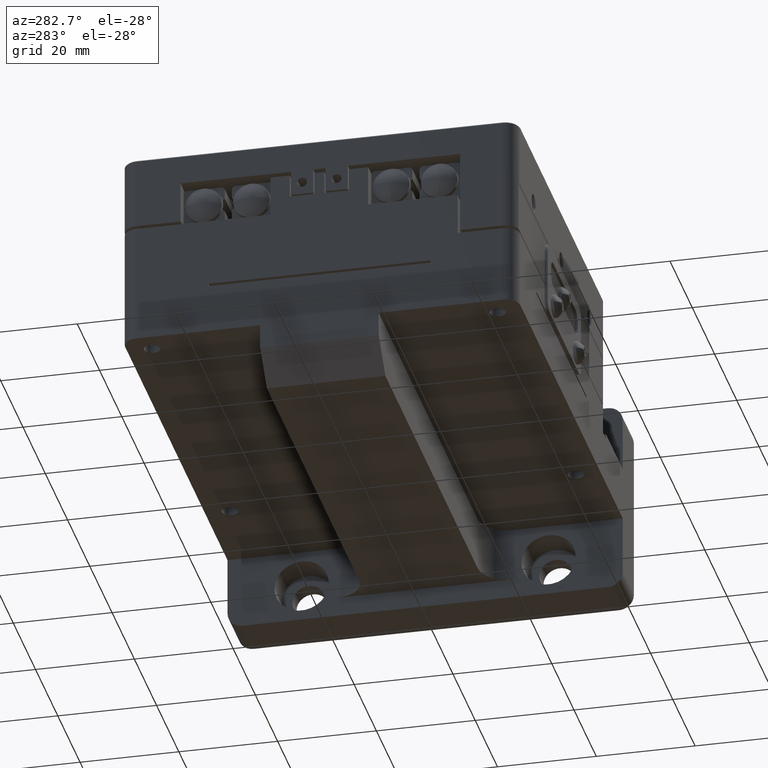
[diagram: clean part render]
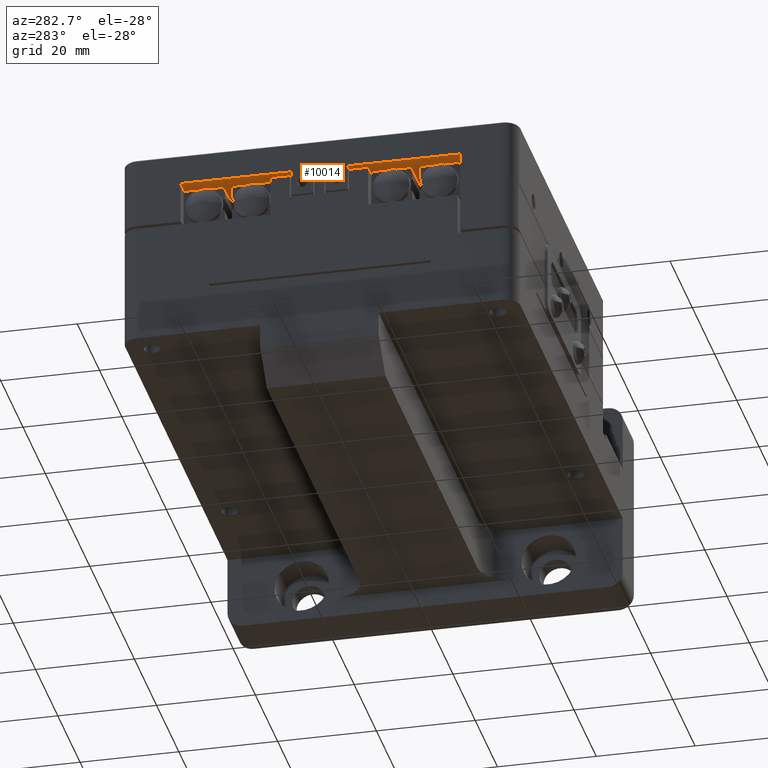
[diagram: same view with one face highlighted and labeled with its STEP entity id]
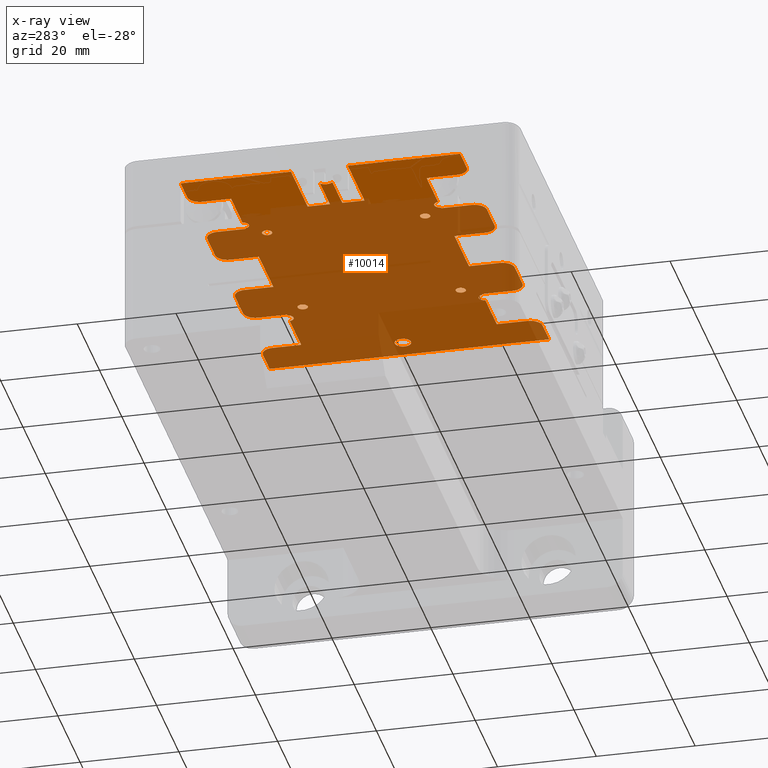
[diagram: x-ray of the same camera — body ghosted, the highlighted face saturated]
A machine part, auxiliary view. The second image highlights one B-rep face of the part: STEP entity #10014.
The next image is the same camera in x-ray: the body ghosted, the highlighted face saturated — about 84% of this face is hidden behind the body in this view.
In plain terms, the highlighted planar face has unit normal (0, 0, -1).
Its self-contained STEP definition (entity closure, byte-faithful):
#22 = VERTEX_POINT ( 'NONE', #41473 ) ;
#39 = CARTESIAN_POINT ( 'NONE',  ( -40.00000000000000000, -40.00000000000000000, 9.000000000000007105 ) ) ;
#43 = CIRCLE ( 'NONE', #51982, 2.500000000000000444 ) ;
#102 = CARTESIAN_POINT ( 'NONE',  ( 0.000000000000000000, 0.000000000000000000, 9.000000000000007105 ) ) ;
#109 = EDGE_CURVE ( 'NONE', #39917, #39360, #24910, .T. ) ;
#277 = EDGE_CURVE ( 'NONE', #34879, #35751, #2245, .T. ) ;
#338 = EDGE_CURVE ( 'NONE', #15366, #3196, #19052, .T. ) ;
#348 = VERTEX_POINT ( 'NONE', #39489 ) ;
#618 = ORIENTED_EDGE ( 'NONE', *, *, #109, .T. ) ;
#641 = CARTESIAN_POINT ( 'NONE',  ( 40.00000000000000000, -28.50000000000000000, 9.000000000000007105 ) ) ;
#687 = CARTESIAN_POINT ( 'NONE',  ( -40.00000000000000000, 1.249999999999230837, 9.000000000000007105 ) ) ;
#763 = DIRECTION ( 'NONE',  ( -1.000000000000000000, 0.000000000000000000, -0.000000000000000000 ) ) ;
#792 = DIRECTION ( 'NONE',  ( 0.000000000000000000, 0.000000000000000000, -1.000000000000000000 ) ) ;
#834 = VECTOR ( 'NONE', #33814, 1000.000000000000000 ) ;
#841 = DIRECTION ( 'NONE',  ( 0.000000000000000000, 0.000000000000000000, 1.000000000000000000 ) ) ;
#856 = CIRCLE ( 'NONE', #45790, 1.250000000000001110 ) ;
#966 = EDGE_CURVE ( 'NONE', #22504, #7293, #36212, .T. ) ;
#1066 = CARTESIAN_POINT ( 'NONE',  ( 31.50000000000000000, 25.60000000000000497, 9.000000000000007105 ) ) ;
#1239 = DIRECTION ( 'NONE',  ( 1.000000000000000000, -0.000000000000000000, 0.000000000000000000 ) ) ;
#1442 = ORIENTED_EDGE ( 'NONE', *, *, #13256, .T. ) ;
#1523 = CARTESIAN_POINT ( 'NONE',  ( 18.49999999999999645, -40.00000000000000000, 9.000000000000007105 ) ) ;
#1594 = CIRCLE ( 'NONE', #38603, 1.250000000000001110 ) ;
#1657 = EDGE_CURVE ( 'NONE', #16035, #16379, #19781, .T. ) ;
#1683 = PLANE ( 'NONE',  #50147 ) ;
#1860 = VERTEX_POINT ( 'NONE', #26363 ) ;
#1971 = EDGE_CURVE ( 'NONE', #34601, #9074, #5129, .T. ) ;
#2122 = VECTOR ( 'NONE', #763, 1000.000000000000000 ) ;
#2165 = CARTESIAN_POINT ( 'NONE',  ( -25.00000000000000355, 5.749999999999998224, 9.000000000000007105 ) ) ;
#2179 = VERTEX_POINT ( 'NONE', #16619 ) ;
#2188 = DIRECTION ( 'NONE',  ( 1.000000000000000000, -0.000000000000000000, 0.000000000000000000 ) ) ;
#2245 = LINE ( 'NONE', #26533, #2920 ) ;
#2271 = DIRECTION ( 'NONE',  ( 1.000000000000000000, 0.000000000000000000, 0.000000000000000000 ) ) ;
#2275 = ORIENTED_EDGE ( 'NONE', *, *, #46662, .T. ) ;
#2374 = DIRECTION ( 'NONE',  ( 0.000000000000000000, 0.000000000000000000, 1.000000000000000000 ) ) ;
#2498 = CARTESIAN_POINT ( 'NONE',  ( -9.000000000000005329, -28.50000000000000000, 9.000000000000005329 ) ) ;
#2508 = DIRECTION ( 'NONE',  ( 1.000000000000000000, -0.000000000000000000, 0.000000000000000000 ) ) ;
#2697 = ORIENTED_EDGE ( 'NONE', *, *, #52716, .T. ) ;
#2770 = VERTEX_POINT ( 'NONE', #22033 ) ;
#2841 = CARTESIAN_POINT ( 'NONE',  ( 16.00000000000000000, 16.00000000000000000, 9.000000000000007105 ) ) ;
#2920 = VECTOR ( 'NONE', #2508, 1000.000000000000000 ) ;
#3012 = VERTEX_POINT ( 'NONE', #47619 ) ;
#3037 = ORIENTED_EDGE ( 'NONE', *, *, #31340, .T. ) ;
#3050 = VECTOR ( 'NONE', #9284, 1000.000000000000000 ) ;
#3153 = DIRECTION ( 'NONE',  ( 0.000000000000000000, 0.000000000000000000, 1.000000000000000000 ) ) ;
#3166 = VERTEX_POINT ( 'NONE', #5702 ) ;
#3196 = VERTEX_POINT ( 'NONE', #23589 ) ;
#3625 = LINE ( 'NONE', #39, #22945 ) ;
#3708 = CARTESIAN_POINT ( 'NONE',  ( -18.76610373207439864, 19.80000000000000426, 9.000000000000007105 ) ) ;
#3785 = LINE ( 'NONE', #53445, #38584 ) ;
#3790 = VECTOR ( 'NONE', #17791, 1000.000000000000000 ) ;
#3911 = VERTEX_POINT ( 'NONE', #49728 ) ;
#3928 = CIRCLE ( 'NONE', #47933, 2.500000000000000444 ) ;
#4130 = CARTESIAN_POINT ( 'NONE',  ( 18.76610373207439864, -19.80000000000000071, 9.000000000000007105 ) ) ;
#4269 = CARTESIAN_POINT ( 'NONE',  ( 18.50000000000000355, -26.00000000000001421, 9.000000000000005329 ) ) ;
#4288 = LINE ( 'NONE', #46764, #3790 ) ;
#4369 = LINE ( 'NONE', #9056, #2122 ) ;
#4791 = VERTEX_POINT ( 'NONE', #14890 ) ;
#5047 = VERTEX_POINT ( 'NONE', #50982 ) ;
#5129 = LINE ( 'NONE', #17823, #45311 ) ;
#5196 = VERTEX_POINT ( 'NONE', #27761 ) ;
#5319 = VERTEX_POINT ( 'NONE', #16464 ) ;
#5573 = DIRECTION ( 'NONE',  ( -1.000000000000000000, 0.000000000000000000, -0.000000000000000000 ) ) ;
#5702 = CARTESIAN_POINT ( 'NONE',  ( -34.00000000000000000, -28.50000000000000000, 9.000000000000005329 ) ) ;
#5731 = EDGE_CURVE ( 'NONE', #26317, #5047, #8977, .T. ) ;
#5827 = FACE_BOUND ( 'NONE', #14901, .T. ) ;
#5860 = VERTEX_POINT ( 'NONE', #12823 ) ;
#5910 = CIRCLE ( 'NONE', #36731, 1.649999999999998579 ) ;
#5945 = EDGE_CURVE ( 'NONE', #5047, #26317, #42203, .T. ) ;
#6121 = VECTOR ( 'NONE', #5573, 1000.000000000000000 ) ;
#6159 = DIRECTION ( 'NONE',  ( 1.000000000000000000, 0.000000000000000000, 0.000000000000000000 ) ) ;
#6171 = LINE ( 'NONE', #14185, #31754 ) ;
#6210 = VERTEX_POINT ( 'NONE', #50790 ) ;
#6238 = CARTESIAN_POINT ( 'NONE',  ( 18.49999999999999645, -40.00000000000000000, 9.000000000000007105 ) ) ;
#6256 = ORIENTED_EDGE ( 'NONE', *, *, #18840, .T. ) ;
#6290 = VECTOR ( 'NONE', #27023, 1000.000000000000000 ) ;
#6536 = VERTEX_POINT ( 'NONE', #37433 ) ;
#6748 = VECTOR ( 'NONE', #47722, 1000.000000000000000 ) ;
#6764 = CARTESIAN_POINT ( 'NONE',  ( 35.00000000000000000, 0.000000000000000000, 9.000000000000007105 ) ) ;
#6780 = VECTOR ( 'NONE', #42804, 1000.000000000000000 ) ;
#6842 = CARTESIAN_POINT ( 'NONE',  ( 31.50000000000000711, -19.80000000000000071, 9.000000000000007105 ) ) ;
#6893 = CARTESIAN_POINT ( 'NONE',  ( 34.00000000000000000, -26.00000000000001421, 9.000000000000005329 ) ) ;
#6949 = CARTESIAN_POINT ( 'NONE',  ( 31.50000000000000711, -40.00000000000000000, 9.000000000000007105 ) ) ;
#7232 = DIRECTION ( 'NONE',  ( 0.000000000000000000, 0.000000000000000000, -1.000000000000000000 ) ) ;
#7268 = EDGE_CURVE ( 'NONE', #27907, #22504, #6171, .T. ) ;
#7280 = EDGE_CURVE ( 'NONE', #45127, #3012, #36158, .T. ) ;
#7293 = VERTEX_POINT ( 'NONE', #11668 ) ;
#7341 = CARTESIAN_POINT ( 'NONE',  ( -20.00000000000000000, -20.00000000000000000, 9.000000000000007105 ) ) ;
#7634 = DIRECTION ( 'NONE',  ( -0.000000000000000000, -1.000000000000000000, -0.000000000000000000 ) ) ;
#7779 = CARTESIAN_POINT ( 'NONE',  ( -34.00000000000000000, 25.60000000000000142, 9.000000000000005329 ) ) ;
#7802 = VECTOR ( 'NONE', #41746, 1000.000000000000000 ) ;
#7949 = VECTOR ( 'NONE', #23521, 1000.000000000000000 ) ;
#8118 = DIRECTION ( 'NONE',  ( 0.000000000000000000, 1.000000000000000000, 0.000000000000000000 ) ) ;
#8136 = VERTEX_POINT ( 'NONE', #6842 ) ;
#8374 = DIRECTION ( 'NONE',  ( 1.000000000000000000, 0.000000000000000000, 0.000000000000000000 ) ) ;
#8381 = EDGE_CURVE ( 'NONE', #4791, #16035, #15262, .T. ) ;
#8388 = DIRECTION ( 'NONE',  ( 0.000000000000000000, 0.000000000000000000, 1.000000000000000000 ) ) ;
#8433 = EDGE_CURVE ( 'NONE', #53281, #24318, #44976, .T. ) ;
#8674 = CARTESIAN_POINT ( 'NONE',  ( -40.00000000000000000, 19.80000000000000426, 9.000000000000007105 ) ) ;
#8695 = VERTEX_POINT ( 'NONE', #17949 ) ;
#8971 = CIRCLE ( 'NONE', #38928, 2.500000000000000444 ) ;
#8977 = CIRCLE ( 'NONE', #16027, 1.024999999999999911 ) ;
#8979 = LINE ( 'NONE', #687, #21844 ) ;
#9046 = CARTESIAN_POINT ( 'NONE',  ( -18.50000000000000000, -40.00000000000000000, 9.000000000000007105 ) ) ;
#9056 = CARTESIAN_POINT ( 'NONE',  ( -40.00000000000000000, -28.50000000000000000, 9.000000000000007105 ) ) ;
#9074 = VERTEX_POINT ( 'NONE', #49646 ) ;
#9108 = CARTESIAN_POINT ( 'NONE',  ( 31.50000000000000000, 19.80000000000000426, 9.000000000000007105 ) ) ;
#9128 = LINE ( 'NONE', #14080, #6748 ) ;
#9166 = CARTESIAN_POINT ( 'NONE',  ( -25.00000000000000355, -40.00000000000000000, 9.000000000000007105 ) ) ;
#9187 = VERTEX_POINT ( 'NONE', #21486 ) ;
#9218 = VECTOR ( 'NONE', #2188, 1000.000000000000000 ) ;
#9221 = DIRECTION ( 'NONE',  ( 1.000000000000000000, -0.000000000000000000, 0.000000000000000000 ) ) ;
#9284 = DIRECTION ( 'NONE',  ( -1.000000000000000000, 0.000000000000000000, -0.000000000000000000 ) ) ;
#9400 = CARTESIAN_POINT ( 'NONE',  ( 20.00000000000000000, -20.00000000000000000, 9.000000000000007105 ) ) ;
#9474 = CARTESIAN_POINT ( 'NONE',  ( 16.00000000000000000, -26.00000000000001421, 9.000000000000001776 ) ) ;
#9487 = VERTEX_POINT ( 'NONE', #54286 ) ;
#9500 = CARTESIAN_POINT ( 'NONE',  ( -33.35000000000000142, 0.000000000000000000, 9.000000000000007105 ) ) ;
#9647 = CARTESIAN_POINT ( 'NONE',  ( -40.00000000000000000, 5.749999999999999112, 9.000000000000007105 ) ) ;
#9662 = DIRECTION ( 'NONE',  ( 0.000000000000000000, 1.000000000000000000, 0.000000000000000000 ) ) ;
#9670 = CARTESIAN_POINT ( 'NONE',  ( -35.00000000000000000, 0.000000000000000000, 9.000000000000007105 ) ) ;
#9675 = DIRECTION ( 'NONE',  ( 1.000000000000000000, 0.000000000000000000, 0.000000000000000000 ) ) ;
#9702 = VECTOR ( 'NONE', #31248, 1000.000000000000000 ) ;
#9718 = AXIS2_PLACEMENT_3D ( 'NONE', #42154, #25064, #17065 ) ;
#9752 = AXIS2_PLACEMENT_3D ( 'NONE', #43580, #841, #38905 ) ;
#10014 = ADVANCED_FACE ( 'NONE', ( #43608, #18217, #35048, #51902, #26774, #51633, #5827 ), #1683, .T. ) ;
#10022 = CARTESIAN_POINT ( 'NONE',  ( -6.499999999999999112, -40.00000000000000000, 9.000000000000007105 ) ) ;
#10131 = CARTESIAN_POINT ( 'NONE',  ( -20.00000000000000000, 20.00000000000000000, 9.000000000000007105 ) ) ;
#10157 = ORIENTED_EDGE ( 'NONE', *, *, #7280, .T. ) ;
#10193 = ORIENTED_EDGE ( 'NONE', *, *, #25231, .T. ) ;
#10378 = ORIENTED_EDGE ( 'NONE', *, *, #33833, .T. ) ;
#10601 = VERTEX_POINT ( 'NONE', #33583 ) ;
#10614 = ORIENTED_EDGE ( 'NONE', *, *, #16470, .T. ) ;
#10622 = DIRECTION ( 'NONE',  ( 1.000000000000000000, 0.000000000000000000, 0.000000000000000000 ) ) ;
#10698 = LINE ( 'NONE', #35777, #46452 ) ;
#10834 = VERTEX_POINT ( 'NONE', #27468 ) ;
#11160 = DIRECTION ( 'NONE',  ( -0.000000000000000000, -1.000000000000000000, -0.000000000000000000 ) ) ;
#11437 = EDGE_CURVE ( 'NONE', #35751, #21164, #21025, .T. ) ;
#11439 = LINE ( 'NONE', #11990, #20565 ) ;
#11590 = ORIENTED_EDGE ( 'NONE', *, *, #42007, .T. ) ;
#11668 = CARTESIAN_POINT ( 'NONE',  ( 6.500000000000000888, -26.00000000000001421, 9.000000000000005329 ) ) ;
#11699 = ORIENTED_EDGE ( 'NONE', *, *, #338, .T. ) ;
#11750 = CARTESIAN_POINT ( 'NONE',  ( -25.00000000000000355, -1.250000000000000888, 9.000000000000007105 ) ) ;
#11789 = DIRECTION ( 'NONE',  ( 0.000000000000000000, 0.000000000000000000, -1.000000000000000000 ) ) ;
#11990 = CARTESIAN_POINT ( 'NONE',  ( -40.00000000000000000, 19.80000000000000426, 9.000000000000007105 ) ) ;
#12057 = VERTEX_POINT ( 'NONE', #35485 ) ;
#12060 = CARTESIAN_POINT ( 'NONE',  ( -34.00000000000000000, -26.00000000000001421, 9.000000000000005329 ) ) ;
#12179 = CARTESIAN_POINT ( 'NONE',  ( 6.499999999999999112, -19.80000000000000071, 9.000000000000007105 ) ) ;
#12232 = DIRECTION ( 'NONE',  ( 1.000000000000000000, -0.000000000000000000, 0.000000000000000000 ) ) ;
#12248 = LINE ( 'NONE', #20781, #40574 ) ;
#12251 = VECTOR ( 'NONE', #40910, 1000.000000000000000 ) ;
#12260 = AXIS2_PLACEMENT_3D ( 'NONE', #35393, #51956, #6159 ) ;
#12399 = VECTOR ( 'NONE', #48108, 1000.000000000000000 ) ;
#12462 = ORIENTED_EDGE ( 'NONE', *, *, #20769, .T. ) ;
#12614 = VERTEX_POINT ( 'NONE', #3708 ) ;
#12823 = CARTESIAN_POINT ( 'NONE',  ( -31.50000000000000000, 19.80000000000000426, 9.000000000000007105 ) ) ;
#12895 = CARTESIAN_POINT ( 'NONE',  ( -40.00000000000000000, -19.80000000000000071, 9.000000000000007105 ) ) ;
#12994 = ORIENTED_EDGE ( 'NONE', *, *, #1971, .T. ) ;
#12996 = LINE ( 'NONE', #47438, #49943 ) ;
#13122 = CARTESIAN_POINT ( 'NONE',  ( -9.000000000000007105, 28.10000000000000142, 9.000000000000005329 ) ) ;
#13153 = AXIS2_PLACEMENT_3D ( 'NONE', #16467, #29668, #42381 ) ;
#13192 = EDGE_LOOP ( 'NONE', ( #49326, #2697 ) ) ;
#13256 = EDGE_CURVE ( 'NONE', #15216, #27067, #10698, .T. ) ;
#13264 = AXIS2_PLACEMENT_3D ( 'NONE', #2841, #32615, #49161 ) ;
#13371 = EDGE_CURVE ( 'NONE', #35015, #3166, #34045, .T. ) ;
#13443 = ORIENTED_EDGE ( 'NONE', *, *, #27957, .T. ) ;
#13475 = DIRECTION ( 'NONE',  ( 1.000000000000000000, 0.000000000000000000, 0.000000000000000000 ) ) ;
#13510 = ORIENTED_EDGE ( 'NONE', *, *, #14052, .T. ) ;
#13697 = EDGE_CURVE ( 'NONE', #22572, #29766, #15308, .T. ) ;
#13885 = DIRECTION ( 'NONE',  ( 1.000000000000000000, 0.000000000000000000, 0.000000000000000000 ) ) ;
#13968 = VECTOR ( 'NONE', #12232, 1000.000000000000000 ) ;
#13985 = CARTESIAN_POINT ( 'NONE',  ( 18.49999999999999645, 25.60000000000000497, 9.000000000000005329 ) ) ;
#14052 = EDGE_CURVE ( 'NONE', #1860, #34601, #52241, .T. ) ;
#14080 = CARTESIAN_POINT ( 'NONE',  ( -40.00000000000000000, -19.80000000000000071, 9.000000000000007105 ) ) ;
#14101 = LINE ( 'NONE', #48560, #6290 ) ;
#14185 = CARTESIAN_POINT ( 'NONE',  ( -40.00000000000000000, -28.50000000000000000, 9.000000000000007105 ) ) ;
#14392 = DIRECTION ( 'NONE',  ( 0.000000000000000000, 0.000000000000000000, -1.000000000000000000 ) ) ;
#14463 = EDGE_CURVE ( 'NONE', #5860, #22, #14101, .T. ) ;
#14490 = LINE ( 'NONE', #31288, #12399 ) ;
#14498 = CARTESIAN_POINT ( 'NONE',  ( -33.92296703857221019, 1.249999999999231282, 9.000000000000007105 ) ) ;
#14507 = ORIENTED_EDGE ( 'NONE', *, *, #25568, .T. ) ;
#14691 = DIRECTION ( 'NONE',  ( -1.000000000000000000, 0.000000000000000000, -0.000000000000000000 ) ) ;
#14732 = LINE ( 'NONE', #23282, #12251 ) ;
#14796 = VERTEX_POINT ( 'NONE', #22018 ) ;
#14890 = CARTESIAN_POINT ( 'NONE',  ( -25.00000000000000355, 1.249999999999487521, 9.000000000000007105 ) ) ;
#14901 = EDGE_LOOP ( 'NONE', ( #3037, #50755 ) ) ;
#15000 = VECTOR ( 'NONE', #7634, 1000.000000000000000 ) ;
#15034 = VECTOR ( 'NONE', #52310, 1000.000000000000000 ) ;
#15092 = ORIENTED_EDGE ( 'NONE', *, *, #46305, .T. ) ;
#15216 = VERTEX_POINT ( 'NONE', #48639 ) ;
#15239 = CARTESIAN_POINT ( 'NONE',  ( 16.00000000000000000, 25.60000000000000142, 9.000000000000001776 ) ) ;
#15262 = LINE ( 'NONE', #35931, #7949 ) ;
#15308 = LINE ( 'NONE', #1523, #23792 ) ;
#15312 = ORIENTED_EDGE ( 'NONE', *, *, #39892, .T. ) ;
#15323 = CARTESIAN_POINT ( 'NONE',  ( 14.97500000000000142, -16.00000000000000000, 9.000000000000007105 ) ) ;
#15366 = VERTEX_POINT ( 'NONE', #28464 ) ;
#15417 = LINE ( 'NONE', #32225, #29910 ) ;
#15606 = ORIENTED_EDGE ( 'NONE', *, *, #7268, .T. ) ;
#15701 = CIRCLE ( 'NONE', #51830, 2.499999999999998668 ) ;
#15785 = DIRECTION ( 'NONE',  ( -1.000000000000000000, 0.000000000000000000, 0.000000000000000000 ) ) ;
#16027 = AXIS2_PLACEMENT_3D ( 'NONE', #37090, #3153, #36790 ) ;
#16035 = VERTEX_POINT ( 'NONE', #2165 ) ;
#16101 = EDGE_CURVE ( 'NONE', #37725, #2770, #51733, .T. ) ;
#16141 = CIRCLE ( 'NONE', #35493, 2.500000000000000000 ) ;
#16195 = LINE ( 'NONE', #20029, #15000 ) ;
#16209 = CARTESIAN_POINT ( 'NONE',  ( -16.00000000000000000, 25.60000000000000142, 9.000000000000005329 ) ) ;
#16287 = VECTOR ( 'NONE', #24858, 1000.000000000000000 ) ;
#16379 = VERTEX_POINT ( 'NONE', #9647 ) ;
#16464 = CARTESIAN_POINT ( 'NONE',  ( 34.00000000000000000, -28.50000000000000000, 9.000000000000005329 ) ) ;
#16467 = CARTESIAN_POINT ( 'NONE',  ( 35.00000000000000000, 0.000000000000000000, 9.000000000000007105 ) ) ;
#16470 = EDGE_CURVE ( 'NONE', #348, #2179, #23683, .T. ) ;
#16619 = CARTESIAN_POINT ( 'NONE',  ( -34.00000000000000000, 28.10000000000000853, 9.000000000000007105 ) ) ;
#16693 = CIRCLE ( 'NONE', #13153, 1.649999999999998579 ) ;
#16694 = ORIENTED_EDGE ( 'NONE', *, *, #8381, .T. ) ;
#16799 = CIRCLE ( 'NONE', #37022, 1.024999999999998135 ) ;
#16927 = DIRECTION ( 'NONE',  ( 0.000000000000000000, 0.000000000000000000, 1.000000000000000000 ) ) ;
#16967 = CARTESIAN_POINT ( 'NONE',  ( 36.64999999999999858, 0.000000000000000000, 9.000000000000007105 ) ) ;
#17065 = DIRECTION ( 'NONE',  ( -1.000000000000000000, 0.000000000000000000, 0.000000000000000000 ) ) ;
#17068 = CARTESIAN_POINT ( 'NONE',  ( 18.49999999999999645, 19.80000000000000426, 9.000000000000007105 ) ) ;
#17209 = CARTESIAN_POINT ( 'NONE',  ( 16.00000000000000000, 16.00000000000000000, 9.000000000000007105 ) ) ;
#17275 = ORIENTED_EDGE ( 'NONE', *, *, #24880, .T. ) ;
#17373 = DIRECTION ( 'NONE',  ( 0.000000000000000000, 1.000000000000000000, 0.000000000000000000 ) ) ;
#17465 = DIRECTION ( 'NONE',  ( 0.000000000000000000, 0.000000000000000000, 1.000000000000000000 ) ) ;
#17791 = DIRECTION ( 'NONE',  ( -1.000000000000000000, 0.000000000000000000, -0.000000000000000000 ) ) ;
#17823 = CARTESIAN_POINT ( 'NONE',  ( -40.00000000000000000, 19.80000000000000426, 9.000000000000007105 ) ) ;
#17949 = CARTESIAN_POINT ( 'NONE',  ( 18.49999999999999645, -19.80000000000000071, 9.000000000000007105 ) ) ;
#18217 = FACE_BOUND ( 'NONE', #41126, .T. ) ;
#18695 = AXIS2_PLACEMENT_3D ( 'NONE', #46423, #8388, #2271 ) ;
#18810 = CIRCLE ( 'NONE', #36423, 2.500000000000002220 ) ;
#18840 = EDGE_CURVE ( 'NONE', #27067, #22572, #22643, .T. ) ;
#18962 = CARTESIAN_POINT ( 'NONE',  ( -40.00000000000000000, 5.749999999999998224, 9.000000000000007105 ) ) ;
#19052 = LINE ( 'NONE', #47769, #6121 ) ;
#19087 = AXIS2_PLACEMENT_3D ( 'NONE', #15239, #32056, #31496 ) ;
#19119 = EDGE_CURVE ( 'NONE', #6210, #33766, #5910, .T. ) ;
#19130 = CARTESIAN_POINT ( 'NONE',  ( -6.500000000000000000, -19.80000000000000071, 9.000000000000007105 ) ) ;
#19250 = ORIENTED_EDGE ( 'NONE', *, *, #5731, .T. ) ;
#19258 = DIRECTION ( 'NONE',  ( 0.000000000000000000, 1.000000000000000000, 0.000000000000000000 ) ) ;
#19475 = CARTESIAN_POINT ( 'NONE',  ( -9.000000000000007105, 25.60000000000000142, 9.000000000000001776 ) ) ;
#19645 = CIRCLE ( 'NONE', #50497, 1.024999999999999911 ) ;
#19647 = CARTESIAN_POINT ( 'NONE',  ( 2.500000000000000000, 0.000000000000000000, 9.000000000000007105 ) ) ;
#19781 = LINE ( 'NONE', #18962, #40209 ) ;
#19850 = EDGE_CURVE ( 'NONE', #47562, #4791, #8979, .T. ) ;
#19855 = ORIENTED_EDGE ( 'NONE', *, *, #42332, .T. ) ;
#19961 = CIRCLE ( 'NONE', #50816, 1.649999999999998579 ) ;
#20029 = CARTESIAN_POINT ( 'NONE',  ( -6.499999999999999112, -40.00000000000000000, 9.000000000000007105 ) ) ;
#20161 = ORIENTED_EDGE ( 'NONE', *, *, #50172, .T. ) ;
#20297 = DIRECTION ( 'NONE',  ( 0.000000000000000000, 0.000000000000000000, -1.000000000000000000 ) ) ;
#20320 = CARTESIAN_POINT ( 'NONE',  ( -40.00000000000000000, -28.50000000000000000, 9.000000000000007105 ) ) ;
#20379 = ORIENTED_EDGE ( 'NONE', *, *, #11437, .T. ) ;
#20470 = DIRECTION ( 'NONE',  ( -1.000000000000000000, 0.000000000000000000, 0.000000000000000000 ) ) ;
#20565 = VECTOR ( 'NONE', #32940, 1000.000000000000000 ) ;
#20692 = VERTEX_POINT ( 'NONE', #2498 ) ;
#20769 = EDGE_CURVE ( 'NONE', #39360, #29750, #37253, .T. ) ;
#20781 = CARTESIAN_POINT ( 'NONE',  ( 6.499999999999999112, -40.00000000000000000, 9.000000000000007105 ) ) ;
#20796 = ORIENTED_EDGE ( 'NONE', *, *, #31174, .T. ) ;
#21025 = LINE ( 'NONE', #9166, #6780 ) ;
#21164 = VERTEX_POINT ( 'NONE', #11750 ) ;
#21178 = VERTEX_POINT ( 'NONE', #4269 ) ;
#21378 = CIRCLE ( 'NONE', #32837, 2.500000000000002220 ) ;
#21486 = CARTESIAN_POINT ( 'NONE',  ( 33.35000000000000142, 2.020667218593131029E-16, 9.000000000000007105 ) ) ;
#21669 = CARTESIAN_POINT ( 'NONE',  ( -40.00000000000000000, 28.10000000000000853, 9.000000000000007105 ) ) ;
#21824 = EDGE_CURVE ( 'NONE', #21164, #6210, #23468, .T. ) ;
#21844 = VECTOR ( 'NONE', #1239, 1000.000000000000000 ) ;
#22006 = CARTESIAN_POINT ( 'NONE',  ( -16.00000000000000000, -16.00000000000000000, 9.000000000000007105 ) ) ;
#22018 = CARTESIAN_POINT ( 'NONE',  ( 21.23389626792531715, -19.80000000000005045, 9.000000000000007105 ) ) ;
#22033 = CARTESIAN_POINT ( 'NONE',  ( 40.00000000000000000, 28.10000000000000497, 9.000000000000007105 ) ) ;
#22245 = LINE ( 'NONE', #35736, #36849 ) ;
#22287 = DIRECTION ( 'NONE',  ( 1.000000000000000000, 0.000000000000000000, 0.000000000000000000 ) ) ;
#22458 = ORIENTED_EDGE ( 'NONE', *, *, #5945, .T. ) ;
#22504 = VERTEX_POINT ( 'NONE', #31614 ) ;
#22572 = VERTEX_POINT ( 'NONE', #13985 ) ;
#22643 = CIRCLE ( 'NONE', #19087, 2.500000000000000444 ) ;
#22945 = VECTOR ( 'NONE', #17373, 1000.000000000000000 ) ;
#22958 = CARTESIAN_POINT ( 'NONE',  ( 16.00000000000000000, -28.50000000000000000, 9.000000000000005329 ) ) ;
#23282 = CARTESIAN_POINT ( 'NONE',  ( -40.00000000000000000, -19.80000000000000071, 9.000000000000007105 ) ) ;
#23287 = CARTESIAN_POINT ( 'NONE',  ( -31.50000000000000000, -26.00000000000001421, 9.000000000000007105 ) ) ;
#23397 = CARTESIAN_POINT ( 'NONE',  ( 17.02499999999999858, -16.00000000000000000, 9.000000000000007105 ) ) ;
#23468 = LINE ( 'NONE', #27860, #44131 ) ;
#23521 = DIRECTION ( 'NONE',  ( 0.000000000000000000, 1.000000000000000000, 0.000000000000000000 ) ) ;
#23555 = CARTESIAN_POINT ( 'NONE',  ( 20.00000000000000000, 20.00000000000000000, 9.000000000000007105 ) ) ;
#23589 = CARTESIAN_POINT ( 'NONE',  ( -18.76610373207468641, -19.80000000000005045, 9.000000000000007105 ) ) ;
#23672 = EDGE_CURVE ( 'NONE', #31362, #24115, #16141, .T. ) ;
#23683 = LINE ( 'NONE', #40794, #9218 ) ;
#23708 = DIRECTION ( 'NONE',  ( 0.000000000000000000, 0.000000000000000000, -1.000000000000000000 ) ) ;
#23748 = ORIENTED_EDGE ( 'NONE', *, *, #1657, .T. ) ;
#23754 = VERTEX_POINT ( 'NONE', #16967 ) ;
#23772 = DIRECTION ( 'NONE',  ( 0.000000000000000000, 1.000000000000000000, 0.000000000000000000 ) ) ;
#23786 = DIRECTION ( 'NONE',  ( 0.000000000000000000, 0.000000000000000000, -1.000000000000000000 ) ) ;
#23792 = VECTOR ( 'NONE', #11160, 1000.000000000000000 ) ;
#24015 = CARTESIAN_POINT ( 'NONE',  ( 31.50000000000000711, -40.00000000000000000, 9.000000000000007105 ) ) ;
#24115 = VERTEX_POINT ( 'NONE', #19647 ) ;
#24318 = VERTEX_POINT ( 'NONE', #33431 ) ;
#24408 = ORIENTED_EDGE ( 'NONE', *, *, #46424, .T. ) ;
#24430 = ORIENTED_EDGE ( 'NONE', *, *, #47983, .T. ) ;
#24595 = DIRECTION ( 'NONE',  ( 0.000000000000000000, 0.000000000000000000, -1.000000000000000000 ) ) ;
#24856 = CIRCLE ( 'NONE', #18695, 1.024999999999998135 ) ;
#24858 = DIRECTION ( 'NONE',  ( -0.000000000000000000, -1.000000000000000000, -0.000000000000000000 ) ) ;
#24880 = EDGE_CURVE ( 'NONE', #41957, #15216, #3928, .T. ) ;
#24910 = LINE ( 'NONE', #33454, #7802 ) ;
#25064 = DIRECTION ( 'NONE',  ( 0.000000000000000000, 0.000000000000000000, -1.000000000000000000 ) ) ;
#25231 = EDGE_CURVE ( 'NONE', #25879, #8695, #42399, .T. ) ;
#25422 = CARTESIAN_POINT ( 'NONE',  ( 14.97500000000000142, 16.00000000000000000, 9.000000000000007105 ) ) ;
#25561 = VERTEX_POINT ( 'NONE', #15323 ) ;
#25568 = EDGE_CURVE ( 'NONE', #12614, #12057, #41797, .T. ) ;
#25733 = AXIS2_PLACEMENT_3D ( 'NONE', #19475, #20297, #40453 ) ;
#25879 = VERTEX_POINT ( 'NONE', #4130 ) ;
#26214 = VERTEX_POINT ( 'NONE', #23397 ) ;
#26286 = DIRECTION ( 'NONE',  ( 0.000000000000000000, 0.000000000000000000, -1.000000000000000000 ) ) ;
#26317 = VERTEX_POINT ( 'NONE', #54031 ) ;
#26363 = CARTESIAN_POINT ( 'NONE',  ( -6.500000000000002665, 25.60000000000000497, 9.000000000000005329 ) ) ;
#26533 = CARTESIAN_POINT ( 'NONE',  ( -40.00000000000000000, -5.749999999999998224, 9.000000000000007105 ) ) ;
#26574 = DIRECTION ( 'NONE',  ( -1.000000000000000000, 0.000000000000000000, 0.000000000000000000 ) ) ;
#26712 = ORIENTED_EDGE ( 'NONE', *, *, #16101, .T. ) ;
#26723 = ORIENTED_EDGE ( 'NONE', *, *, #49665, .T. ) ;
#26754 = DIRECTION ( 'NONE',  ( 0.000000000000000000, 0.000000000000000000, 1.000000000000000000 ) ) ;
#26774 = FACE_BOUND ( 'NONE', #27192, .T. ) ;
#26925 = EDGE_LOOP ( 'NONE', ( #27332, #32594 ) ) ;
#26941 = DIRECTION ( 'NONE',  ( 1.000000000000000000, 0.000000000000000000, 0.000000000000000000 ) ) ;
#27023 = DIRECTION ( 'NONE',  ( 1.000000000000000000, -0.000000000000000000, 0.000000000000000000 ) ) ;
#27067 = VERTEX_POINT ( 'NONE', #45319 ) ;
#27148 = ORIENTED_EDGE ( 'NONE', *, *, #966, .T. ) ;
#27192 = EDGE_LOOP ( 'NONE', ( #35185, #27866 ) ) ;
#27332 = ORIENTED_EDGE ( 'NONE', *, *, #47844, .T. ) ;
#27415 = CARTESIAN_POINT ( 'NONE',  ( -40.00000000000000000, -5.749999999999998224, 9.000000000000007105 ) ) ;
#27429 = DIRECTION ( 'NONE',  ( 0.000000000000000000, 0.000000000000000000, 1.000000000000000000 ) ) ;
#27468 = CARTESIAN_POINT ( 'NONE',  ( -31.50000000000000000, 25.60000000000000497, 9.000000000000007105 ) ) ;
#27522 = VECTOR ( 'NONE', #14691, 1000.000000000000000 ) ;
#27761 = CARTESIAN_POINT ( 'NONE',  ( -21.23389626792560136, -19.80000000000000071, 9.000000000000007105 ) ) ;
#27860 = CARTESIAN_POINT ( 'NONE',  ( -40.00000000000000000, -1.250000000000001110, 9.000000000000007105 ) ) ;
#27866 = ORIENTED_EDGE ( 'NONE', *, *, #48747, .T. ) ;
#27903 = CARTESIAN_POINT ( 'NONE',  ( 9.000000000000007105, -26.00000000000001421, 9.000000000000005329 ) ) ;
#27907 = VERTEX_POINT ( 'NONE', #22958 ) ;
#27931 = VERTEX_POINT ( 'NONE', #12179 ) ;
#27957 = EDGE_CURVE ( 'NONE', #10834, #5860, #54116, .T. ) ;
#28382 = CIRCLE ( 'NONE', #34536, 1.649999999999998579 ) ;
#28464 = CARTESIAN_POINT ( 'NONE',  ( -18.50000000000000000, -19.80000000000000071, 9.000000000000007105 ) ) ;
#28710 = DIRECTION ( 'NONE',  ( 1.000000000000000000, 0.000000000000000000, 0.000000000000000000 ) ) ;
#28742 = AXIS2_PLACEMENT_3D ( 'NONE', #40328, #7232, #39805 ) ;
#28751 = CARTESIAN_POINT ( 'NONE',  ( -40.00000000000000000, 28.10000000000000853, 9.000000000000007105 ) ) ;
#28755 = ORIENTED_EDGE ( 'NONE', *, *, #48959, .T. ) ;
#28885 = CIRCLE ( 'NONE', #46534, 2.500000000000000000 ) ;
#29428 = EDGE_CURVE ( 'NONE', #5196, #54510, #9128, .T. ) ;
#29459 = ORIENTED_EDGE ( 'NONE', *, *, #54008, .T. ) ;
#29492 = ORIENTED_EDGE ( 'NONE', *, *, #38568, .T. ) ;
#29668 = DIRECTION ( 'NONE',  ( 0.000000000000000000, 0.000000000000000000, 1.000000000000000000 ) ) ;
#29750 = VERTEX_POINT ( 'NONE', #1066 ) ;
#29766 = VERTEX_POINT ( 'NONE', #17068 ) ;
#29910 = VECTOR ( 'NONE', #19258, 1000.000000000000000 ) ;
#29920 = EDGE_CURVE ( 'NONE', #20692, #6536, #45424, .T. ) ;
#29951 = CIRCLE ( 'NONE', #9718, 2.499999999999998668 ) ;
#29981 = ORIENTED_EDGE ( 'NONE', *, *, #52381, .T. ) ;
#30002 = DIRECTION ( 'NONE',  ( 0.000000000000000000, 0.000000000000000000, 1.000000000000000000 ) ) ;
#30262 = ORIENTED_EDGE ( 'NONE', *, *, #29428, .T. ) ;
#30486 = EDGE_CURVE ( 'NONE', #14796, #25879, #51749, .T. ) ;
#30504 = VERTEX_POINT ( 'NONE', #47447 ) ;
#30609 = ORIENTED_EDGE ( 'NONE', *, *, #40007, .T. ) ;
#30967 = CARTESIAN_POINT ( 'NONE',  ( -40.00000000000000000, -19.80000000000000071, 9.000000000000007105 ) ) ;
#30991 = DIRECTION ( 'NONE',  ( -1.000000000000000000, 0.000000000000000000, -0.000000000000000000 ) ) ;
#31022 = ORIENTED_EDGE ( 'NONE', *, *, #49342, .T. ) ;
#31052 = CIRCLE ( 'NONE', #25733, 2.500000000000000444 ) ;
#31093 = EDGE_CURVE ( 'NONE', #30504, #49498, #15701, .T. ) ;
#31174 = EDGE_CURVE ( 'NONE', #2770, #47752, #3785, .T. ) ;
#31196 = DIRECTION ( 'NONE',  ( -1.000000000000000000, 0.000000000000000000, -0.000000000000000000 ) ) ;
#31248 = DIRECTION ( 'NONE',  ( -0.000000000000000000, -1.000000000000000000, -0.000000000000000000 ) ) ;
#31288 = CARTESIAN_POINT ( 'NONE',  ( -31.50000000000000000, -40.00000000000000000, 9.000000000000007105 ) ) ;
#31340 = EDGE_CURVE ( 'NONE', #24115, #31362, #28885, .T. ) ;
#31356 = DIRECTION ( 'NONE',  ( 0.000000000000000000, 0.000000000000000000, 1.000000000000000000 ) ) ;
#31362 = VERTEX_POINT ( 'NONE', #41191 ) ;
#31452 = AXIS2_PLACEMENT_3D ( 'NONE', #9400, #26754, #9675 ) ;
#31496 = DIRECTION ( 'NONE',  ( -1.000000000000000000, 0.000000000000000000, 0.000000000000000000 ) ) ;
#31614 = CARTESIAN_POINT ( 'NONE',  ( 9.000000000000005329, -28.50000000000000000, 9.000000000000005329 ) ) ;
#31754 = VECTOR ( 'NONE', #30991, 1000.000000000000000 ) ;
#32000 = VERTEX_POINT ( 'NONE', #49034 ) ;
#32056 = DIRECTION ( 'NONE',  ( 0.000000000000000000, 0.000000000000000000, -1.000000000000000000 ) ) ;
#32225 = CARTESIAN_POINT ( 'NONE',  ( -18.50000000000000000, -40.00000000000000000, 9.000000000000007105 ) ) ;
#32575 = CARTESIAN_POINT ( 'NONE',  ( -31.50000000000000000, -40.00000000000000000, 9.000000000000007105 ) ) ;
#32594 = ORIENTED_EDGE ( 'NONE', *, *, #36277, .T. ) ;
#32615 = DIRECTION ( 'NONE',  ( 0.000000000000000000, 0.000000000000000000, 1.000000000000000000 ) ) ;
#32670 = ORIENTED_EDGE ( 'NONE', *, *, #39809, .T. ) ;
#32837 = AXIS2_PLACEMENT_3D ( 'NONE', #6893, #23708, #40552 ) ;
#32940 = DIRECTION ( 'NONE',  ( 1.000000000000000000, -0.000000000000000000, 0.000000000000000000 ) ) ;
#33377 = DIRECTION ( 'NONE',  ( 0.000000000000000000, 1.000000000000000000, 0.000000000000000000 ) ) ;
#33431 = CARTESIAN_POINT ( 'NONE',  ( -17.02499999999999858, -16.00000000000000000, 9.000000000000007105 ) ) ;
#33454 = CARTESIAN_POINT ( 'NONE',  ( -40.00000000000000000, 19.80000000000000426, 9.000000000000007105 ) ) ;
#33531 = EDGE_CURVE ( 'NONE', #3196, #5196, #1594, .T. ) ;
#33583 = CARTESIAN_POINT ( 'NONE',  ( 31.50000000000000000, -26.00000000000001421, 9.000000000000007105 ) ) ;
#33616 = CARTESIAN_POINT ( 'NONE',  ( 6.500000000000002665, 25.60000000000000142, 9.000000000000005329 ) ) ;
#33639 = DIRECTION ( 'NONE',  ( -1.000000000000000000, 0.000000000000000000, 0.000000000000000000 ) ) ;
#33766 = VERTEX_POINT ( 'NONE', #9500 ) ;
#33814 = DIRECTION ( 'NONE',  ( 1.000000000000000000, -0.000000000000000000, 0.000000000000000000 ) ) ;
#33833 = EDGE_CURVE ( 'NONE', #27931, #46345, #14732, .T. ) ;
#33916 = VECTOR ( 'NONE', #9221, 1000.000000000000000 ) ;
#33918 = EDGE_CURVE ( 'NONE', #49498, #34865, #42003, .T. ) ;
#34045 = CIRCLE ( 'NONE', #50800, 2.500000000000002220 ) ;
#34486 = EDGE_LOOP ( 'NONE', ( #22458, #19250 ) ) ;
#34536 = AXIS2_PLACEMENT_3D ( 'NONE', #41136, #49697, #28710 ) ;
#34599 = ORIENTED_EDGE ( 'NONE', *, *, #37790, .T. ) ;
#34601 = VERTEX_POINT ( 'NONE', #40245 ) ;
#34638 = EDGE_CURVE ( 'NONE', #3911, #15366, #15417, .T. ) ;
#34688 = ORIENTED_EDGE ( 'NONE', *, *, #13697, .T. ) ;
#34786 = ORIENTED_EDGE ( 'NONE', *, *, #33531, .T. ) ;
#34865 = VERTEX_POINT ( 'NONE', #13122 ) ;
#34879 = VERTEX_POINT ( 'NONE', #27415 ) ;
#35015 = VERTEX_POINT ( 'NONE', #23287 ) ;
#35048 = FACE_BOUND ( 'NONE', #26925, .T. ) ;
#35185 = ORIENTED_EDGE ( 'NONE', *, *, #8433, .T. ) ;
#35213 = CARTESIAN_POINT ( 'NONE',  ( 21.23389626792560492, 19.80000000000000426, 9.000000000000007105 ) ) ;
#35393 = CARTESIAN_POINT ( 'NONE',  ( -16.00000000000000000, 16.00000000000000000, 9.000000000000007105 ) ) ;
#35474 = DIRECTION ( 'NONE',  ( 0.000000000000000000, 1.000000000000000000, 0.000000000000000000 ) ) ;
#35485 = CARTESIAN_POINT ( 'NONE',  ( -18.50000000000000000, 19.80000000000000426, 9.000000000000007105 ) ) ;
#35493 = AXIS2_PLACEMENT_3D ( 'NONE', #51526, #30002, #13475 ) ;
#35736 = CARTESIAN_POINT ( 'NONE',  ( -40.00000000000000000, -40.00000000000000000, 9.000000000000007105 ) ) ;
#35751 = VERTEX_POINT ( 'NONE', #46035 ) ;
#35777 = CARTESIAN_POINT ( 'NONE',  ( -40.00000000000000000, 28.10000000000000853, 9.000000000000007105 ) ) ;
#35791 = DIRECTION ( 'NONE',  ( -1.000000000000000000, 0.000000000000000000, -0.000000000000000000 ) ) ;
#35799 = VECTOR ( 'NONE', #23772, 1000.000000000000000 ) ;
#35906 = LINE ( 'NONE', #30967, #27522 ) ;
#35931 = CARTESIAN_POINT ( 'NONE',  ( -25.00000000000000355, -40.00000000000000000, 9.000000000000007105 ) ) ;
#36158 = CIRCLE ( 'NONE', #13264, 1.024999999999998135 ) ;
#36212 = CIRCLE ( 'NONE', #52970, 2.500000000000000444 ) ;
#36228 = CIRCLE ( 'NONE', #47698, 1.250000000000001110 ) ;
#36277 = EDGE_CURVE ( 'NONE', #25561, #26214, #49456, .T. ) ;
#36423 = AXIS2_PLACEMENT_3D ( 'NONE', #7779, #24595, #20470 ) ;
#36731 = AXIS2_PLACEMENT_3D ( 'NONE', #9670, #50522, #46361 ) ;
#36790 = DIRECTION ( 'NONE',  ( 1.000000000000000000, 0.000000000000000000, 0.000000000000000000 ) ) ;
#36849 = VECTOR ( 'NONE', #35474, 1000.000000000000000 ) ;
#37022 = AXIS2_PLACEMENT_3D ( 'NONE', #17209, #17465, #13885 ) ;
#37090 = CARTESIAN_POINT ( 'NONE',  ( -16.00000000000000000, 16.00000000000000000, 9.000000000000007105 ) ) ;
#37253 = LINE ( 'NONE', #24015, #37801 ) ;
#37273 = EDGE_CURVE ( 'NONE', #23754, #9187, #16693, .T. ) ;
#37433 = CARTESIAN_POINT ( 'NONE',  ( -16.00000000000000000, -28.50000000000000000, 9.000000000000005329 ) ) ;
#37686 = DIRECTION ( 'NONE',  ( -1.000000000000000000, 0.000000000000000000, 0.000000000000000000 ) ) ;
#37694 = DIRECTION ( 'NONE',  ( 0.000000000000000000, 0.000000000000000000, -1.000000000000000000 ) ) ;
#37725 = VERTEX_POINT ( 'NONE', #42037 ) ;
#37771 = CARTESIAN_POINT ( 'NONE',  ( 9.000000000000007105, 25.60000000000000142, 9.000000000000005329 ) ) ;
#37790 = EDGE_CURVE ( 'NONE', #21178, #27907, #43, .T. ) ;
#37801 = VECTOR ( 'NONE', #33377, 1000.000000000000000 ) ;
#38157 = ORIENTED_EDGE ( 'NONE', *, *, #29920, .T. ) ;
#38192 = ORIENTED_EDGE ( 'NONE', *, *, #51974, .T. ) ;
#38568 = EDGE_CURVE ( 'NONE', #8695, #21178, #44008, .T. ) ;
#38584 = VECTOR ( 'NONE', #45698, 1000.000000000000000 ) ;
#38603 = AXIS2_PLACEMENT_3D ( 'NONE', #7341, #2374, #48979 ) ;
#38841 = DIRECTION ( 'NONE',  ( 0.000000000000000000, 0.000000000000000000, 1.000000000000000000 ) ) ;
#38905 = DIRECTION ( 'NONE',  ( 1.000000000000000000, 0.000000000000000000, 0.000000000000000000 ) ) ;
#38928 = AXIS2_PLACEMENT_3D ( 'NONE', #47352, #43763, #47090 ) ;
#38955 = ORIENTED_EDGE ( 'NONE', *, *, #19119, .T. ) ;
#39360 = VERTEX_POINT ( 'NONE', #9108 ) ;
#39489 = CARTESIAN_POINT ( 'NONE',  ( -40.00000000000000000, 28.10000000000001208, 9.000000000000007105 ) ) ;
#39805 = DIRECTION ( 'NONE',  ( -1.000000000000000000, 0.000000000000000000, 0.000000000000000000 ) ) ;
#39809 = EDGE_CURVE ( 'NONE', #12057, #30504, #42141, .T. ) ;
#39892 = EDGE_CURVE ( 'NONE', #32000, #20692, #8971, .T. ) ;
#39917 = VERTEX_POINT ( 'NONE', #35213 ) ;
#40007 = EDGE_CURVE ( 'NONE', #34865, #1860, #31052, .T. ) ;
#40089 = ORIENTED_EDGE ( 'NONE', *, *, #44917, .T. ) ;
#40138 = CARTESIAN_POINT ( 'NONE',  ( 16.00000000000000000, -16.00000000000000000, 9.000000000000007105 ) ) ;
#40209 = VECTOR ( 'NONE', #35791, 1000.000000000000000 ) ;
#40245 = CARTESIAN_POINT ( 'NONE',  ( -6.499999999999999112, 19.80000000000000426, 9.000000000000007105 ) ) ;
#40328 = CARTESIAN_POINT ( 'NONE',  ( 34.00000000000000000, 25.60000000000000142, 9.000000000000005329 ) ) ;
#40453 = DIRECTION ( 'NONE',  ( -1.000000000000000000, 0.000000000000000000, 0.000000000000000000 ) ) ;
#40552 = DIRECTION ( 'NONE',  ( -1.000000000000000000, 0.000000000000000000, 0.000000000000000000 ) ) ;
#40574 = VECTOR ( 'NONE', #8118, 1000.000000000000000 ) ;
#40794 = CARTESIAN_POINT ( 'NONE',  ( -40.00000000000000000, 28.10000000000000853, 9.000000000000007105 ) ) ;
#40910 = DIRECTION ( 'NONE',  ( -1.000000000000000000, 0.000000000000000000, -0.000000000000000000 ) ) ;
#41009 = DIRECTION ( 'NONE',  ( -1.000000000000000000, 0.000000000000000000, -0.000000000000000000 ) ) ;
#41126 = EDGE_LOOP ( 'NONE', ( #15092, #10157 ) ) ;
#41136 = CARTESIAN_POINT ( 'NONE',  ( -35.00000000000000000, 0.000000000000000000, 9.000000000000007105 ) ) ;
#41147 = VECTOR ( 'NONE', #41009, 1000.000000000000000 ) ;
#41191 = CARTESIAN_POINT ( 'NONE',  ( -2.500000000000000000, 3.061616997868383141E-16, 9.000000000000007105 ) ) ;
#41289 = DIRECTION ( 'NONE',  ( -1.000000000000000000, 0.000000000000000000, 0.000000000000000000 ) ) ;
#41473 = CARTESIAN_POINT ( 'NONE',  ( -21.23389626792531715, 19.80000000000005400, 9.000000000000007105 ) ) ;
#41589 = EDGE_CURVE ( 'NONE', #9487, #39917, #856, .T. ) ;
#41746 = DIRECTION ( 'NONE',  ( 1.000000000000000000, -0.000000000000000000, 0.000000000000000000 ) ) ;
#41797 = LINE ( 'NONE', #8674, #33916 ) ;
#41957 = VERTEX_POINT ( 'NONE', #33616 ) ;
#42003 = LINE ( 'NONE', #28751, #13968 ) ;
#42007 = EDGE_CURVE ( 'NONE', #6536, #3911, #29951, .T. ) ;
#42037 = CARTESIAN_POINT ( 'NONE',  ( 34.00000000000000000, 28.10000000000001208, 9.000000000000005329 ) ) ;
#42141 = LINE ( 'NONE', #9046, #45108 ) ;
#42154 = CARTESIAN_POINT ( 'NONE',  ( -16.00000000000000000, -26.00000000000001421, 9.000000000000005329 ) ) ;
#42203 = CIRCLE ( 'NONE', #12260, 1.024999999999999911 ) ;
#42332 = EDGE_CURVE ( 'NONE', #46345, #32000, #16195, .T. ) ;
#42381 = DIRECTION ( 'NONE',  ( 1.000000000000000000, 0.000000000000000000, 0.000000000000000000 ) ) ;
#42399 = LINE ( 'NONE', #12895, #3050 ) ;
#42653 = DIRECTION ( 'NONE',  ( 1.000000000000000000, -0.000000000000000000, 0.000000000000000000 ) ) ;
#42804 = DIRECTION ( 'NONE',  ( 0.000000000000000000, 1.000000000000000000, 0.000000000000000000 ) ) ;
#42875 = ORIENTED_EDGE ( 'NONE', *, *, #19850, .T. ) ;
#43354 = ORIENTED_EDGE ( 'NONE', *, *, #47153, .T. ) ;
#43580 = CARTESIAN_POINT ( 'NONE',  ( -16.00000000000000000, -16.00000000000000000, 9.000000000000007105 ) ) ;
#43608 = FACE_OUTER_BOUND ( 'NONE', #51871, .T. ) ;
#43763 = DIRECTION ( 'NONE',  ( 0.000000000000000000, 0.000000000000000000, -1.000000000000000000 ) ) ;
#44008 = LINE ( 'NONE', #6238, #15034 ) ;
#44131 = VECTOR ( 'NONE', #44696, 1000.000000000000000 ) ;
#44531 = DIRECTION ( 'NONE',  ( 0.000000000000000000, 0.000000000000000000, 1.000000000000000000 ) ) ;
#44696 = DIRECTION ( 'NONE',  ( -1.000000000000000000, 0.000000000000000000, -0.000000000000000000 ) ) ;
#44723 = LINE ( 'NONE', #6949, #35799 ) ;
#44879 = ORIENTED_EDGE ( 'NONE', *, *, #33918, .T. ) ;
#44917 = EDGE_CURVE ( 'NONE', #53208, #34879, #22245, .T. ) ;
#44976 = CIRCLE ( 'NONE', #9752, 1.024999999999999911 ) ;
#45108 = VECTOR ( 'NONE', #50699, 1000.000000000000000 ) ;
#45127 = VERTEX_POINT ( 'NONE', #25422 ) ;
#45311 = VECTOR ( 'NONE', #42653, 1000.000000000000000 ) ;
#45319 = CARTESIAN_POINT ( 'NONE',  ( 16.00000000000000000, 28.10000000000000142, 9.000000000000005329 ) ) ;
#45341 = DIRECTION ( 'NONE',  ( 1.000000000000000000, 0.000000000000000000, 0.000000000000000000 ) ) ;
#45424 = LINE ( 'NONE', #20320, #41147 ) ;
#45698 = DIRECTION ( 'NONE',  ( -0.000000000000000000, -1.000000000000000000, -0.000000000000000000 ) ) ;
#45790 = AXIS2_PLACEMENT_3D ( 'NONE', #23555, #27429, #45341 ) ;
#45957 = ORIENTED_EDGE ( 'NONE', *, *, #13371, .T. ) ;
#46035 = CARTESIAN_POINT ( 'NONE',  ( -25.00000000000000355, -5.749999999999999112, 9.000000000000007105 ) ) ;
#46289 = CARTESIAN_POINT ( 'NONE',  ( -31.50000000000000000, -19.80000000000000071, 9.000000000000007105 ) ) ;
#46305 = EDGE_CURVE ( 'NONE', #3012, #45127, #16799, .T. ) ;
#46345 = VERTEX_POINT ( 'NONE', #19130 ) ;
#46361 = DIRECTION ( 'NONE',  ( 1.000000000000000000, 0.000000000000000000, 0.000000000000000000 ) ) ;
#46408 = ORIENTED_EDGE ( 'NONE', *, *, #50898, .T. ) ;
#46423 = CARTESIAN_POINT ( 'NONE',  ( 16.00000000000000000, -16.00000000000000000, 9.000000000000007105 ) ) ;
#46424 = EDGE_CURVE ( 'NONE', #54510, #35015, #14490, .T. ) ;
#46452 = VECTOR ( 'NONE', #48190, 1000.000000000000000 ) ;
#46534 = AXIS2_PLACEMENT_3D ( 'NONE', #102, #16927, #8374 ) ;
#46662 = EDGE_CURVE ( 'NONE', #7293, #27931, #12248, .T. ) ;
#46764 = CARTESIAN_POINT ( 'NONE',  ( -40.00000000000000000, -28.50000000000000000, 9.000000000000007105 ) ) ;
#46810 = AXIS2_PLACEMENT_3D ( 'NONE', #40138, #49698, #53857 ) ;
#47090 = DIRECTION ( 'NONE',  ( -1.000000000000000000, 0.000000000000000000, 0.000000000000000000 ) ) ;
#47153 = EDGE_CURVE ( 'NONE', #22, #12614, #36228, .T. ) ;
#47306 = ORIENTED_EDGE ( 'NONE', *, *, #41589, .T. ) ;
#47352 = CARTESIAN_POINT ( 'NONE',  ( -9.000000000000007105, -26.00000000000001421, 9.000000000000001776 ) ) ;
#47438 = CARTESIAN_POINT ( 'NONE',  ( 6.499999999999999112, -40.00000000000000000, 9.000000000000007105 ) ) ;
#47447 = CARTESIAN_POINT ( 'NONE',  ( -18.50000000000000000, 25.60000000000000497, 9.000000000000007105 ) ) ;
#47448 = CARTESIAN_POINT ( 'NONE',  ( -14.97499999999999964, -16.00000000000000000, 9.000000000000007105 ) ) ;
#47562 = VERTEX_POINT ( 'NONE', #14498 ) ;
#47619 = CARTESIAN_POINT ( 'NONE',  ( 17.02499999999999858, 16.00000000000000000, 9.000000000000007105 ) ) ;
#47673 = ORIENTED_EDGE ( 'NONE', *, *, #52107, .T. ) ;
#47698 = AXIS2_PLACEMENT_3D ( 'NONE', #10131, #31356, #26941 ) ;
#47722 = DIRECTION ( 'NONE',  ( -1.000000000000000000, 0.000000000000000000, -0.000000000000000000 ) ) ;
#47752 = VERTEX_POINT ( 'NONE', #641 ) ;
#47769 = CARTESIAN_POINT ( 'NONE',  ( -40.00000000000000000, -19.80000000000000071, 9.000000000000007105 ) ) ;
#47844 = EDGE_CURVE ( 'NONE', #26214, #25561, #24856, .T. ) ;
#47933 = AXIS2_PLACEMENT_3D ( 'NONE', #37771, #792, #33639 ) ;
#47947 = ORIENTED_EDGE ( 'NONE', *, *, #277, .T. ) ;
#47983 = EDGE_CURVE ( 'NONE', #8136, #14796, #35906, .T. ) ;
#48108 = DIRECTION ( 'NONE',  ( -0.000000000000000000, -1.000000000000000000, -0.000000000000000000 ) ) ;
#48136 = EDGE_CURVE ( 'NONE', #33766, #47562, #28382, .T. ) ;
#48190 = DIRECTION ( 'NONE',  ( 1.000000000000000000, -0.000000000000000000, 0.000000000000000000 ) ) ;
#48381 = ORIENTED_EDGE ( 'NONE', *, *, #34638, .T. ) ;
#48560 = CARTESIAN_POINT ( 'NONE',  ( -40.00000000000000000, 19.80000000000000426, 9.000000000000007105 ) ) ;
#48639 = CARTESIAN_POINT ( 'NONE',  ( 9.000000000000007105, 28.10000000000001208, 9.000000000000005329 ) ) ;
#48645 = ORIENTED_EDGE ( 'NONE', *, *, #21824, .T. ) ;
#48747 = EDGE_CURVE ( 'NONE', #24318, #53281, #19645, .T. ) ;
#48959 = EDGE_CURVE ( 'NONE', #29766, #9487, #11439, .T. ) ;
#48979 = DIRECTION ( 'NONE',  ( 1.000000000000000000, 0.000000000000000000, 0.000000000000000000 ) ) ;
#49034 = CARTESIAN_POINT ( 'NONE',  ( -6.500000000000004441, -26.00000000000001421, 9.000000000000005329 ) ) ;
#49161 = DIRECTION ( 'NONE',  ( 1.000000000000000000, 0.000000000000000000, 0.000000000000000000 ) ) ;
#49326 = ORIENTED_EDGE ( 'NONE', *, *, #37273, .T. ) ;
#49342 = EDGE_CURVE ( 'NONE', #2179, #10834, #18810, .T. ) ;
#49456 = CIRCLE ( 'NONE', #46810, 1.024999999999998135 ) ;
#49498 = VERTEX_POINT ( 'NONE', #52169 ) ;
#49646 = CARTESIAN_POINT ( 'NONE',  ( 6.500000000000000000, 19.80000000000000426, 9.000000000000007105 ) ) ;
#49665 = EDGE_CURVE ( 'NONE', #5319, #10601, #21378, .T. ) ;
#49697 = DIRECTION ( 'NONE',  ( 0.000000000000000000, 0.000000000000000000, 1.000000000000000000 ) ) ;
#49698 = DIRECTION ( 'NONE',  ( 0.000000000000000000, 0.000000000000000000, 1.000000000000000000 ) ) ;
#49702 = CARTESIAN_POINT ( 'NONE',  ( -40.00000000000000000, -28.50000000000000000, 9.000000000000007105 ) ) ;
#49728 = CARTESIAN_POINT ( 'NONE',  ( -18.50000000000000000, -26.00000000000001421, 9.000000000000007105 ) ) ;
#49943 = VECTOR ( 'NONE', #9662, 1000.000000000000000 ) ;
#50147 = AXIS2_PLACEMENT_3D ( 'NONE', #52188, #14392, #31196 ) ;
#50172 = EDGE_CURVE ( 'NONE', #3166, #53208, #4288, .T. ) ;
#50237 = ORIENTED_EDGE ( 'NONE', *, *, #30486, .T. ) ;
#50497 = AXIS2_PLACEMENT_3D ( 'NONE', #22006, #38841, #22287 ) ;
#50522 = DIRECTION ( 'NONE',  ( 0.000000000000000000, 0.000000000000000000, 1.000000000000000000 ) ) ;
#50699 = DIRECTION ( 'NONE',  ( 0.000000000000000000, 1.000000000000000000, 0.000000000000000000 ) ) ;
#50755 = ORIENTED_EDGE ( 'NONE', *, *, #23672, .T. ) ;
#50790 = CARTESIAN_POINT ( 'NONE',  ( -33.92296703855489426, -1.249999999984305665, 9.000000000000007105 ) ) ;
#50800 = AXIS2_PLACEMENT_3D ( 'NONE', #12060, #11789, #37686 ) ;
#50816 = AXIS2_PLACEMENT_3D ( 'NONE', #6764, #44531, #10622 ) ;
#50898 = EDGE_CURVE ( 'NONE', #47752, #5319, #4369, .T. ) ;
#50982 = CARTESIAN_POINT ( 'NONE',  ( -14.97499999999999964, 16.00000000000000000, 9.000000000000007105 ) ) ;
#51526 = CARTESIAN_POINT ( 'NONE',  ( 0.000000000000000000, 0.000000000000000000, 9.000000000000007105 ) ) ;
#51633 = FACE_BOUND ( 'NONE', #13192, .T. ) ;
#51733 = LINE ( 'NONE', #21669, #834 ) ;
#51749 = CIRCLE ( 'NONE', #31452, 1.250000000000001110 ) ;
#51830 = AXIS2_PLACEMENT_3D ( 'NONE', #16209, #37694, #41289 ) ;
#51871 = EDGE_LOOP ( 'NONE', ( #45957, #20161, #40089, #47947, #20379, #48645, #38955, #54273, #42875, #16694, #23748, #29459, #10614, #31022, #13443, #52070, #43354, #14507, #32670, #51994, #44879, #30609, #13510, #12994, #29981, #17275, #1442, #6256, #34688, #28755, #47306, #618, #12462, #38192, #26712, #20796, #46408, #26723, #47673, #24430, #50237, #10193, #29492, #34599, #15606, #27148, #2275, #10378, #19855, #15312, #38157, #11590, #48381, #11699, #34786, #30262, #24408 ) ) ;
#51902 = FACE_BOUND ( 'NONE', #34486, .T. ) ;
#51956 = DIRECTION ( 'NONE',  ( 0.000000000000000000, 0.000000000000000000, 1.000000000000000000 ) ) ;
#51974 = EDGE_CURVE ( 'NONE', #29750, #37725, #53460, .T. ) ;
#51982 = AXIS2_PLACEMENT_3D ( 'NONE', #9474, #26286, #26574 ) ;
#51994 = ORIENTED_EDGE ( 'NONE', *, *, #31093, .T. ) ;
#52070 = ORIENTED_EDGE ( 'NONE', *, *, #14463, .T. ) ;
#52107 = EDGE_CURVE ( 'NONE', #10601, #8136, #44723, .T. ) ;
#52169 = CARTESIAN_POINT ( 'NONE',  ( -16.00000000000000000, 28.10000000000001208, 9.000000000000005329 ) ) ;
#52188 = CARTESIAN_POINT ( 'NONE',  ( -40.00000000000000000, -40.00000000000000000, 9.000000000000007105 ) ) ;
#52241 = LINE ( 'NONE', #10022, #9702 ) ;
#52310 = DIRECTION ( 'NONE',  ( -0.000000000000000000, -1.000000000000000000, -0.000000000000000000 ) ) ;
#52381 = EDGE_CURVE ( 'NONE', #9074, #41957, #12996, .T. ) ;
#52716 = EDGE_CURVE ( 'NONE', #9187, #23754, #19961, .T. ) ;
#52970 = AXIS2_PLACEMENT_3D ( 'NONE', #27903, #23786, #15785 ) ;
#53208 = VERTEX_POINT ( 'NONE', #49702 ) ;
#53281 = VERTEX_POINT ( 'NONE', #47448 ) ;
#53445 = CARTESIAN_POINT ( 'NONE',  ( 40.00000000000000000, -40.00000000000000000, 9.000000000000007105 ) ) ;
#53460 = CIRCLE ( 'NONE', #28742, 2.500000000000002220 ) ;
#53857 = DIRECTION ( 'NONE',  ( 1.000000000000000000, 0.000000000000000000, 0.000000000000000000 ) ) ;
#54008 = EDGE_CURVE ( 'NONE', #16379, #348, #3625, .T. ) ;
#54031 = CARTESIAN_POINT ( 'NONE',  ( -17.02499999999999858, 16.00000000000000000, 9.000000000000007105 ) ) ;
#54116 = LINE ( 'NONE', #32575, #16287 ) ;
#54273 = ORIENTED_EDGE ( 'NONE', *, *, #48136, .T. ) ;
#54286 = CARTESIAN_POINT ( 'NONE',  ( 18.76610373207468641, 19.80000000000005400, 9.000000000000007105 ) ) ;
#54510 = VERTEX_POINT ( 'NONE', #46289 ) ;